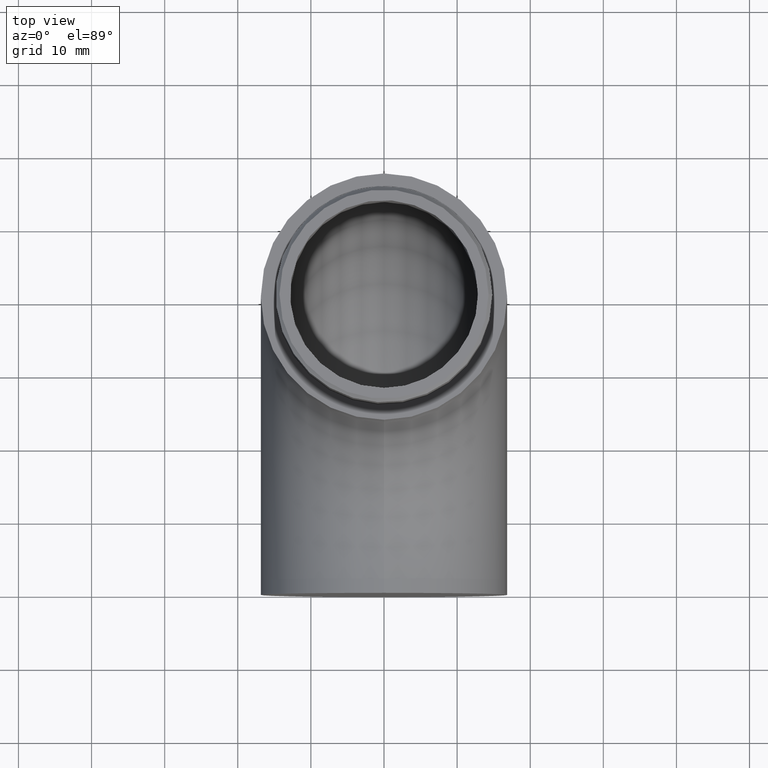
[diagram: clean part render]
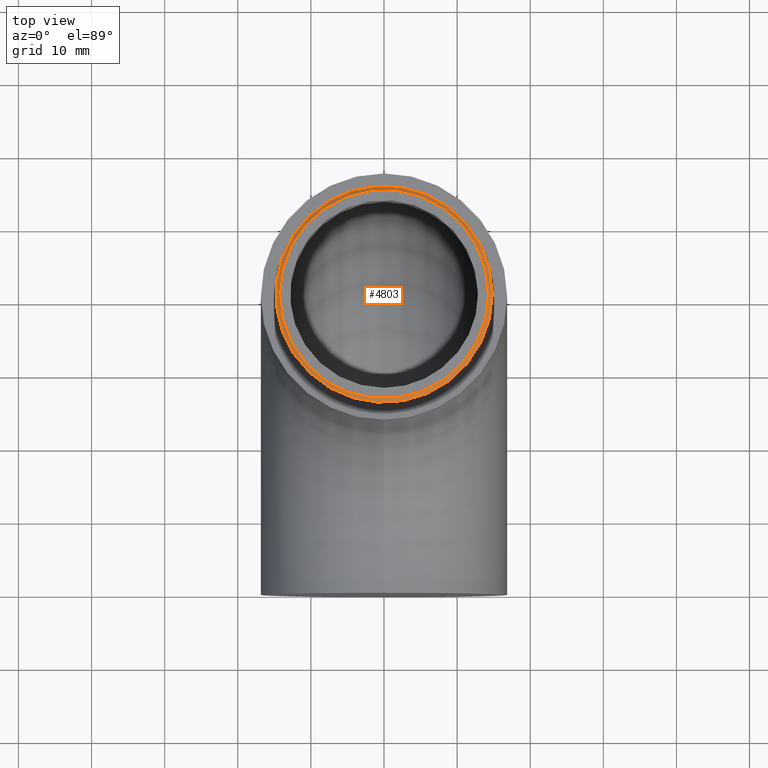
[diagram: same view with one face highlighted and labeled with its STEP entity id]
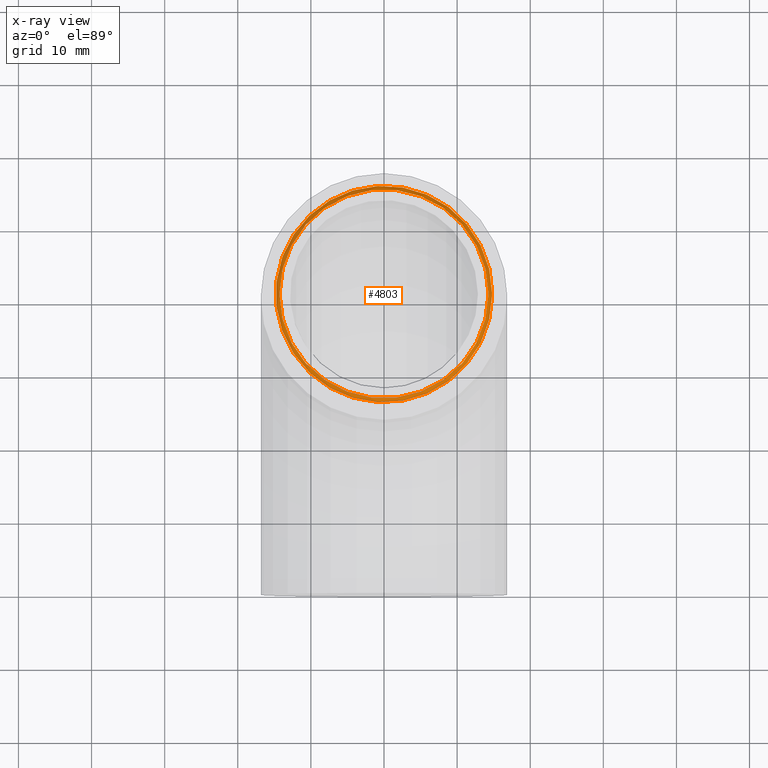
[diagram: x-ray of the same camera — body ghosted, the highlighted face saturated]
A machine part, top view. The second image highlights one B-rep face of the part: STEP entity #4803.
The next image is the same camera in x-ray: the body ghosted, the highlighted face saturated — about 0% of this face is hidden behind the body in this view.
In plain terms, the highlighted conical surface has half-angle 45 deg.
Its self-contained STEP definition (entity closure, byte-faithful):
#62 = CARTESIAN_POINT ( 'NONE',  ( 0.0000000000000000000, 40.14999999999999900, 58.14999999999999900 ) ) ;
#298 = CIRCLE ( 'NONE', #4569, 14.29999999999996500 ) ;
#310 = DIRECTION ( 'NONE',  ( 0.0000000000000000000, 0.0000000000000000000, -1.000000000000000000 ) ) ;
#2296 = DIRECTION ( 'NONE',  ( 0.0000000000000000000, 0.0000000000000000000, 1.000000000000000000 ) ) ;
#2333 = VERTEX_POINT ( 'NONE', #2595 ) ;
#2396 = EDGE_CURVE ( 'NONE', #2333, #2333, #298, .T. ) ;
#2581 = ORIENTED_EDGE ( 'NONE', *, *, #2396, .F. ) ;
#2595 = CARTESIAN_POINT ( 'NONE',  ( 14.29999999999996500, 40.14999999999999900, 58.14999999999999900 ) ) ;
#3021 = CARTESIAN_POINT ( 'NONE',  ( 0.0000000000000000000, 40.14999999999999900, 57.64999999999999100 ) ) ;
#3027 = EDGE_CURVE ( 'NONE', #6630, #6630, #6581, .T. ) ;
#3209 = AXIS2_PLACEMENT_3D ( 'NONE', #62, #10140, #8348 ) ;
#3251 = CONICAL_SURFACE ( 'NONE', #3209, 14.29999999999996500, 0.7853981633974742600 ) ;
#3325 = CARTESIAN_POINT ( 'NONE',  ( 0.0000000000000000000, 40.14999999999999900, 58.14999999999999900 ) ) ;
#3899 = AXIS2_PLACEMENT_3D ( 'NONE', #3021, #310, #6703 ) ;
#4445 = ORIENTED_EDGE ( 'NONE', *, *, #3027, .F. ) ;
#4569 = AXIS2_PLACEMENT_3D ( 'NONE', #3325, #2296, #11523 ) ;
#4803 = ADVANCED_FACE ( 'NONE', ( #10384, #7131 ), #3251, .T. ) ;
#6076 = EDGE_LOOP ( 'NONE', ( #2581 ) ) ;
#6581 = CIRCLE ( 'NONE', #3899, 14.79999999999999900 ) ;
#6630 = VERTEX_POINT ( 'NONE', #7152 ) ;
#6703 = DIRECTION ( 'NONE',  ( 1.000000000000000000, 0.0000000000000000000, 0.0000000000000000000 ) ) ;
#7131 = FACE_BOUND ( 'NONE', #6076, .T. ) ;
#7152 = CARTESIAN_POINT ( 'NONE',  ( 14.79999999999999900, 40.14999999999999900, 57.64999999999999100 ) ) ;
#8348 = DIRECTION ( 'NONE',  ( -1.000000000000000000, 0.0000000000000000000, 0.0000000000000000000 ) ) ;
#9992 = EDGE_LOOP ( 'NONE', ( #4445 ) ) ;
#10140 = DIRECTION ( 'NONE',  ( 0.0000000000000000000, 0.0000000000000000000, -1.000000000000000000 ) ) ;
#10384 = FACE_OUTER_BOUND ( 'NONE', #9992, .T. ) ;
#11523 = DIRECTION ( 'NONE',  ( 1.000000000000000000, 0.0000000000000000000, 0.0000000000000000000 ) ) ;